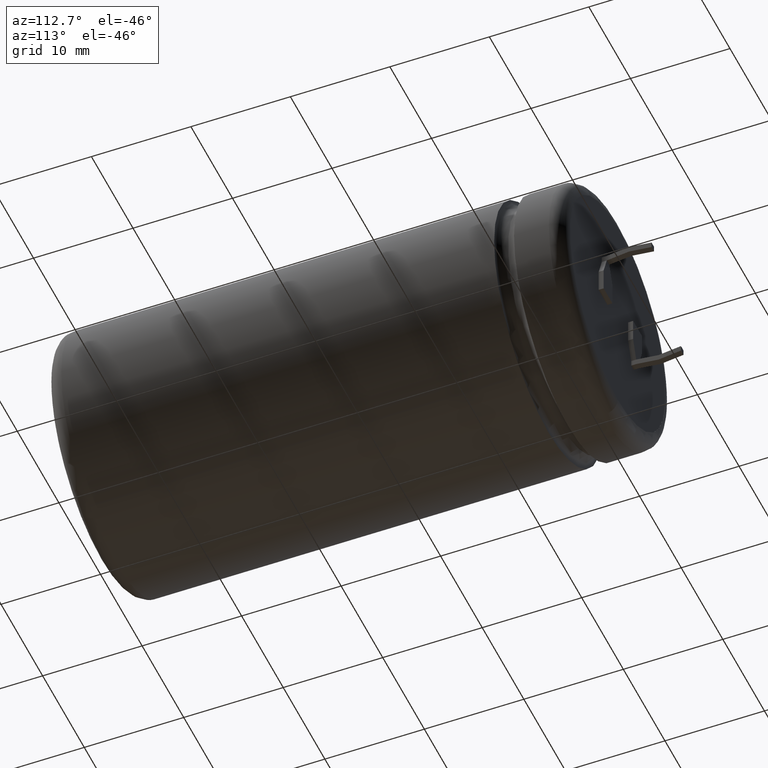
[diagram: clean part render]
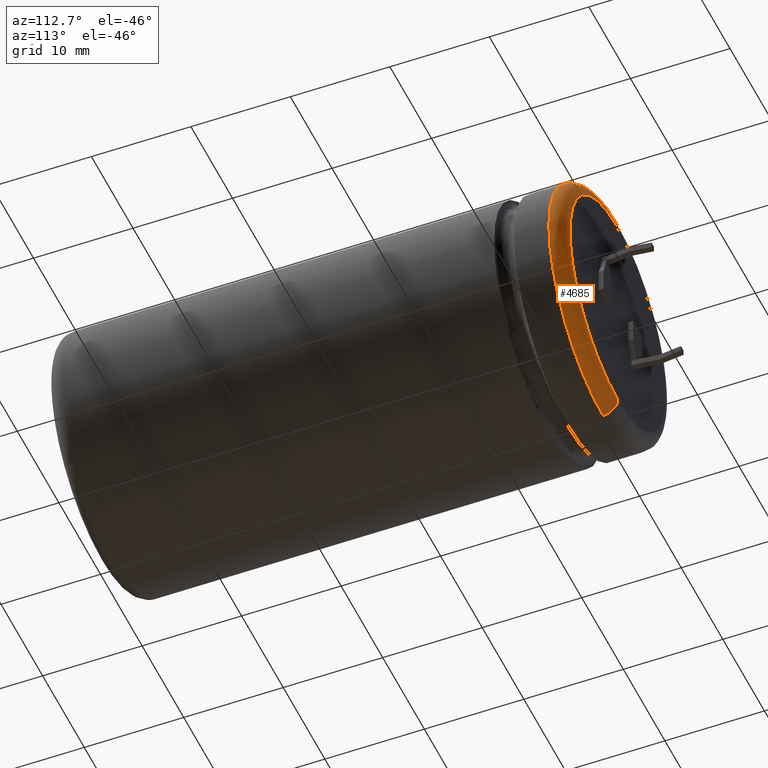
[diagram: same view with one face highlighted and labeled with its STEP entity id]
A machine part, auxiliary view. The second image highlights one B-rep face of the part: STEP entity #4685.
In plain terms, the highlighted toroidal blend (fillet) surface has major radius 11.5024 mm and minor (blend) radius 1.4976 mm.
Its self-contained STEP definition (entity closure, byte-faithful):
#55 = EDGE_CURVE ( 'NONE', #3440, #3749, #1323, .T. ) ;
#111 = DIRECTION ( 'NONE',  ( 0.0000000000000000000, 0.0000000000000000000, 1.000000000000000000 ) ) ;
#112 = EDGE_CURVE ( 'NONE', #2825, #3741, #3381, .T. ) ;
#157 = TOROIDAL_SURFACE ( 'NONE', #1738, 11.50240000000000200, 1.497600000000000000 ) ;
#344 = CIRCLE ( 'NONE', #2230, 1.497600000000000000 ) ;
#360 = CIRCLE ( 'NONE', #4587, 1.497600000000000000 ) ;
#372 = CARTESIAN_POINT ( 'NONE',  ( 1.592040838891558900E-015, 50.50239999999999400, 13.00000000000000200 ) ) ;
#633 = CARTESIAN_POINT ( 'NONE',  ( 0.0000000000000000000, 52.00000000000000000, 11.50240000000000200 ) ) ;
#819 = CARTESIAN_POINT ( 'NONE',  ( 0.0000000000000000000, 50.50239999999999400, 0.0000000000000000000 ) ) ;
#947 = ORIENTED_EDGE ( 'NONE', *, *, #55, .F. ) ;
#1223 = EDGE_CURVE ( 'NONE', #3440, #3741, #360, .T. ) ;
#1323 = CIRCLE ( 'NONE', #3841, 13.00000000000000200 ) ;
#1333 = DIRECTION ( 'NONE',  ( -0.0000000000000000000, -1.000000000000000000, -0.0000000000000000000 ) ) ;
#1578 = DIRECTION ( 'NONE',  ( -1.000000000000000000, 0.0000000000000000000, 0.0000000000000000000 ) ) ;
#1712 = DIRECTION ( 'NONE',  ( 0.0000000000000000000, 1.000000000000000000, 0.0000000000000000000 ) ) ;
#1738 = AXIS2_PLACEMENT_3D ( 'NONE', #819, #1712, #3567 ) ;
#2079 = EDGE_LOOP ( 'NONE', ( #947, #2839, #3097, #3121 ) ) ;
#2115 = DIRECTION ( 'NONE',  ( 0.0000000000000000000, 1.000000000000000000, 0.0000000000000000000 ) ) ;
#2140 = DIRECTION ( 'NONE',  ( 1.000000000000000000, -0.0000000000000000000, 1.224646799147353200E-016 ) ) ;
#2145 = FACE_OUTER_BOUND ( 'NONE', #2079, .T. ) ;
#2230 = AXIS2_PLACEMENT_3D ( 'NONE', #3114, #1578, #111 ) ;
#2324 = EDGE_CURVE ( 'NONE', #3749, #2825, #344, .T. ) ;
#2332 = AXIS2_PLACEMENT_3D ( 'NONE', #2800, #2115, #3945 ) ;
#2506 = DIRECTION ( 'NONE',  ( 1.224646799147353900E-016, 0.0000000000000000000, -1.000000000000000000 ) ) ;
#2800 = CARTESIAN_POINT ( 'NONE',  ( 0.0000000000000000000, 52.00000000000000000, 0.0000000000000000000 ) ) ;
#2825 = VERTEX_POINT ( 'NONE', #633 ) ;
#2839 = ORIENTED_EDGE ( 'NONE', *, *, #1223, .T. ) ;
#3088 = DIRECTION ( 'NONE',  ( 0.0000000000000000000, 0.0000000000000000000, 1.000000000000000000 ) ) ;
#3097 = ORIENTED_EDGE ( 'NONE', *, *, #112, .F. ) ;
#3114 = CARTESIAN_POINT ( 'NONE',  ( 0.0000000000000000000, 50.50239999999999400, 11.50240000000000200 ) ) ;
#3121 = ORIENTED_EDGE ( 'NONE', *, *, #2324, .F. ) ;
#3381 = CIRCLE ( 'NONE', #2332, 11.50240000000000200 ) ;
#3440 = VERTEX_POINT ( 'NONE', #3942 ) ;
#3567 = DIRECTION ( 'NONE',  ( 0.0000000000000000000, 0.0000000000000000000, 1.000000000000000000 ) ) ;
#3741 = VERTEX_POINT ( 'NONE', #4340 ) ;
#3749 = VERTEX_POINT ( 'NONE', #372 ) ;
#3841 = AXIS2_PLACEMENT_3D ( 'NONE', #4609, #1333, #3088 ) ;
#3942 = CARTESIAN_POINT ( 'NONE',  ( 0.0000000000000000000, 50.50239999999999400, -13.00000000000000200 ) ) ;
#3945 = DIRECTION ( 'NONE',  ( 0.0000000000000000000, 0.0000000000000000000, 1.000000000000000000 ) ) ;
#4340 = CARTESIAN_POINT ( 'NONE',  ( 1.500339286571405600E-015, 52.00000000000000000, -11.50240000000000200 ) ) ;
#4342 = CARTESIAN_POINT ( 'NONE',  ( 1.408637734251251800E-015, 50.50239999999999400, -11.50240000000000200 ) ) ;
#4587 = AXIS2_PLACEMENT_3D ( 'NONE', #4342, #2140, #2506 ) ;
#4609 = CARTESIAN_POINT ( 'NONE',  ( 0.0000000000000000000, 50.50239999999999400, 0.0000000000000000000 ) ) ;
#4685 = ADVANCED_FACE ( 'NONE', ( #2145 ), #157, .T. ) ;